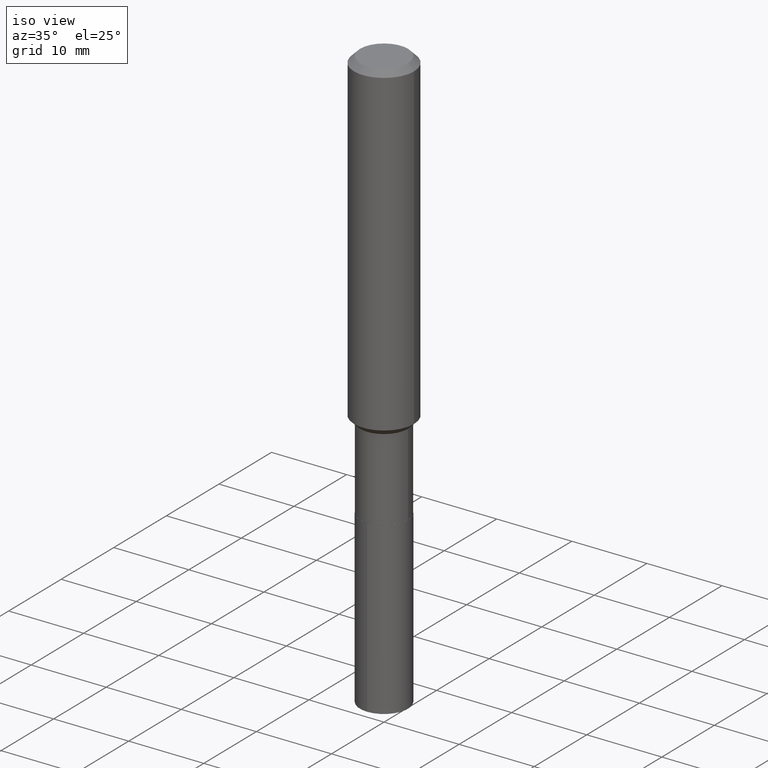
[diagram: clean part render]
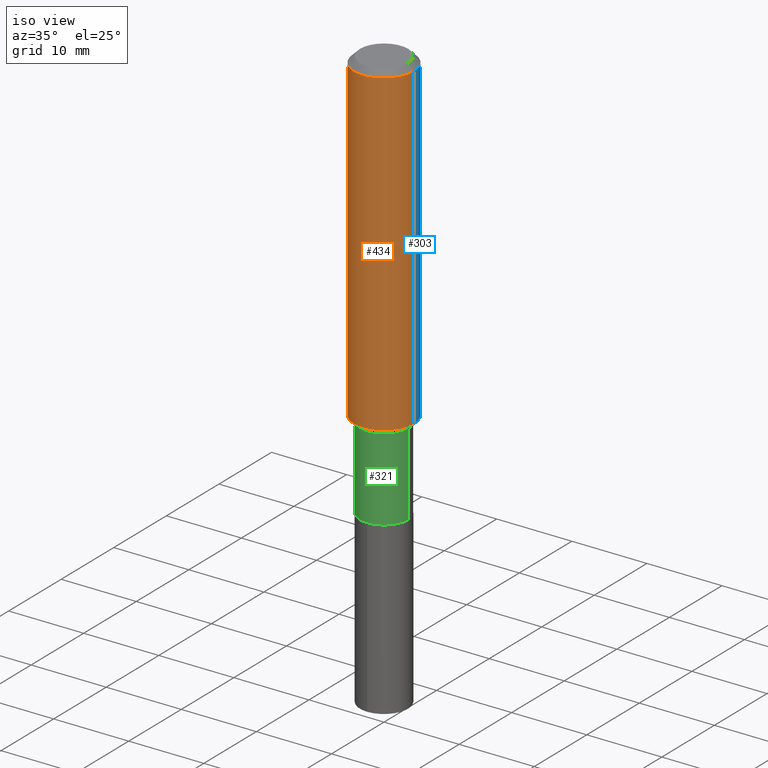
[diagram: same view with three faces highlighted in distinct colors, each labeled with its STEP entity id]
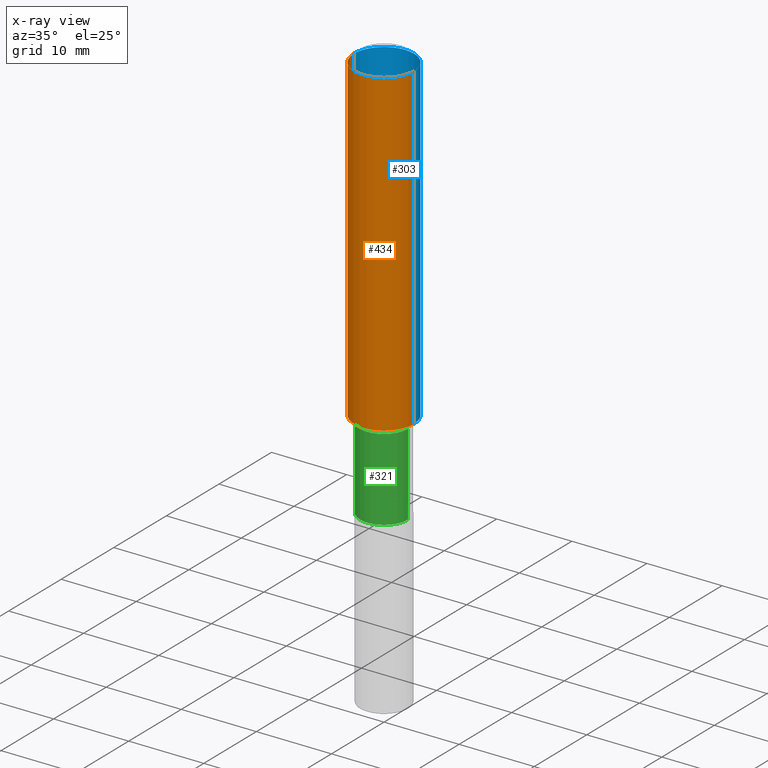
[diagram: x-ray of the same camera — body ghosted, the three highlighted faces saturated]
A machine part, iso view with three faces highlighted in distinct colors.
The next image is the same camera in x-ray (body ghosted, the three faces saturated) — at least one of them is partly hidden behind the body in this view.
Their STEP definitions:

[orange] entity #434 — the highlighted cylindrical surface (partial cylindrical patch) has radius 4.0005 mm, axis along (-0, 0, 1).
#22 = ORIENTED_EDGE ( 'NONE', *, *, #143, .F. ) ;
#27 = EDGE_CURVE ( 'NONE', #396, #343, #299, .T. ) ;
#45 = CARTESIAN_POINT ( 'NONE',  ( 7.703226739483228723E-31, -1.099816621735597661E-16, -0.03150000000000019451 ) ) ;
#47 = AXIS2_PLACEMENT_3D ( 'NONE', #287, #168, #164 ) ;
#94 = LINE ( 'NONE', #441, #387 ) ;
#132 = ORIENTED_EDGE ( 'NONE', *, *, #180, .T. ) ;
#143 = EDGE_CURVE ( 'NONE', #403, #345, #425, .T. ) ;
#144 = CARTESIAN_POINT ( 'NONE',  ( -0.1575000000000001954, -4.824443874290526161E-15, -1.702299999999999702 ) ) ;
#164 = DIRECTION ( 'NONE',  ( 1.000000000000000000, -6.982962677686267499E-15, 4.876176775795936353E-29 ) ) ;
#168 = DIRECTION ( 'NONE',  ( -2.445468806185136597E-29, 3.491481338843145583E-15, 1.000000000000000000 ) ) ;
#172 = CARTESIAN_POINT ( 'NONE',  ( 4.162921548768957196E-29, -5.943548683112686131E-15, -1.702299999999999702 ) ) ;
#180 = EDGE_CURVE ( 'NONE', #343, #345, #395, .T. ) ;
#204 = CARTESIAN_POINT ( 'NONE',  ( 0.1575000000000000844, -1.099816621735587677E-15, 7.679978421878603638E-30 ) ) ;
#215 = EDGE_LOOP ( 'NONE', ( #416, #418, #132, #22 ) ) ;
#216 = VECTOR ( 'NONE', #424, 39.37007874015748143 ) ;
#261 = CARTESIAN_POINT ( 'NONE',  ( -0.1575000000000000011, -1.907660363820963613E-15, -0.03150000000000019451 ) ) ;
#263 = EDGE_CURVE ( 'NONE', #396, #403, #94, .T. ) ;
#287 = CARTESIAN_POINT ( 'NONE',  ( 0.000000000000000000, 0.000000000000000000, 0.000000000000000000 ) ) ;
#289 = DIRECTION ( 'NONE',  ( -2.445468806185136877E-29, 3.491481338843145188E-15, 1.000000000000000000 ) ) ;
#292 = FACE_OUTER_BOUND ( 'NONE', #215, .T. ) ;
#293 = CARTESIAN_POINT ( 'NONE',  ( 0.1575000000000000011, -1.209798283909146741E-15, -0.03150000000000019451 ) ) ;
#299 = CIRCLE ( 'NONE', #488, 0.1575000000000001954 ) ;
#314 = DIRECTION ( 'NONE',  ( 1.000000000000000000, -6.982962677686265922E-15, 0.000000000000000000 ) ) ;
#319 = DIRECTION ( 'NONE',  ( -2.445468806185136597E-29, 3.491481338843145583E-15, 1.000000000000000000 ) ) ;
#325 = DIRECTION ( 'NONE',  ( 1.000000000000000000, -6.982962677686265922E-15, 0.000000000000000000 ) ) ;
#329 = CYLINDRICAL_SURFACE ( 'NONE', #47, 0.1575000000000000844 ) ;
#343 = VERTEX_POINT ( 'NONE', #479 ) ;
#345 = VERTEX_POINT ( 'NONE', #293 ) ;
#387 = VECTOR ( 'NONE', #289, 39.37007874015748143 ) ;
#395 = LINE ( 'NONE', #204, #216 ) ;
#396 = VERTEX_POINT ( 'NONE', #144 ) ;
#403 = VERTEX_POINT ( 'NONE', #261 ) ;
#416 = ORIENTED_EDGE ( 'NONE', *, *, #263, .F. ) ;
#418 = ORIENTED_EDGE ( 'NONE', *, *, #27, .T. ) ;
#424 = DIRECTION ( 'NONE',  ( -2.445468806185136877E-29, 3.491481338843145188E-15, 1.000000000000000000 ) ) ;
#425 = CIRCLE ( 'NONE', #447, 0.1575000000000000011 ) ;
#431 = DIRECTION ( 'NONE',  ( -2.445468806185136597E-29, 3.491481338843145583E-15, 1.000000000000000000 ) ) ;
#434 = ADVANCED_FACE ( 'NONE', ( #292 ), #329, .T. ) ;
#441 = CARTESIAN_POINT ( 'NONE',  ( -0.1575000000000000844, 1.119104808822158392E-15, -7.747322767151481189E-30 ) ) ;
#447 = AXIS2_PLACEMENT_3D ( 'NONE', #45, #431, #314 ) ;
#479 = CARTESIAN_POINT ( 'NONE',  ( 0.1575000000000001954, -7.043365304848274400E-15, -1.702299999999999702 ) ) ;
#488 = AXIS2_PLACEMENT_3D ( 'NONE', #172, #319, #325 ) ;

[blue] entity #303 — the highlighted cylindrical surface (partial cylindrical patch) has radius 4.0005 mm, axis along (-0, 0, 1).
#33 = DIRECTION ( 'NONE',  ( -2.445468806185136597E-29, 3.491481338843145583E-15, 1.000000000000000000 ) ) ;
#38 = EDGE_CURVE ( 'NONE', #345, #403, #269, .T. ) ;
#58 = EDGE_LOOP ( 'NONE', ( #174, #251, #211, #158 ) ) ;
#60 = CYLINDRICAL_SURFACE ( 'NONE', #126, 0.1575000000000000844 ) ;
#94 = LINE ( 'NONE', #441, #387 ) ;
#98 = AXIS2_PLACEMENT_3D ( 'NONE', #362, #227, #414 ) ;
#111 = DIRECTION ( 'NONE',  ( 1.000000000000000000, -6.982962677686267499E-15, 4.876176775795936353E-29 ) ) ;
#126 = AXIS2_PLACEMENT_3D ( 'NONE', #473, #285, #111 ) ;
#144 = CARTESIAN_POINT ( 'NONE',  ( -0.1575000000000001954, -4.824443874290526161E-15, -1.702299999999999702 ) ) ;
#156 = AXIS2_PLACEMENT_3D ( 'NONE', #372, #33, #485 ) ;
#158 = ORIENTED_EDGE ( 'NONE', *, *, #180, .F. ) ;
#167 = CIRCLE ( 'NONE', #156, 0.1575000000000001954 ) ;
#174 = ORIENTED_EDGE ( 'NONE', *, *, #388, .T. ) ;
#180 = EDGE_CURVE ( 'NONE', #343, #345, #395, .T. ) ;
#204 = CARTESIAN_POINT ( 'NONE',  ( 0.1575000000000000844, -1.099816621735587677E-15, 7.679978421878603638E-30 ) ) ;
#211 = ORIENTED_EDGE ( 'NONE', *, *, #38, .F. ) ;
#216 = VECTOR ( 'NONE', #424, 39.37007874015748143 ) ;
#227 = DIRECTION ( 'NONE',  ( -2.445468806185136597E-29, 3.491481338843145583E-15, 1.000000000000000000 ) ) ;
#251 = ORIENTED_EDGE ( 'NONE', *, *, #263, .T. ) ;
#261 = CARTESIAN_POINT ( 'NONE',  ( -0.1575000000000000011, -1.907660363820963613E-15, -0.03150000000000019451 ) ) ;
#263 = EDGE_CURVE ( 'NONE', #396, #403, #94, .T. ) ;
#269 = CIRCLE ( 'NONE', #98, 0.1575000000000000011 ) ;
#285 = DIRECTION ( 'NONE',  ( -2.445468806185136597E-29, 3.491481338843145583E-15, 1.000000000000000000 ) ) ;
#289 = DIRECTION ( 'NONE',  ( -2.445468806185136877E-29, 3.491481338843145188E-15, 1.000000000000000000 ) ) ;
#293 = CARTESIAN_POINT ( 'NONE',  ( 0.1575000000000000011, -1.209798283909146741E-15, -0.03150000000000019451 ) ) ;
#303 = ADVANCED_FACE ( 'NONE', ( #437 ), #60, .T. ) ;
#343 = VERTEX_POINT ( 'NONE', #479 ) ;
#345 = VERTEX_POINT ( 'NONE', #293 ) ;
#362 = CARTESIAN_POINT ( 'NONE',  ( 7.703226739483228723E-31, -1.099816621735597661E-16, -0.03150000000000019451 ) ) ;
#372 = CARTESIAN_POINT ( 'NONE',  ( 4.162921548768957196E-29, -5.943548683112686131E-15, -1.702299999999999702 ) ) ;
#387 = VECTOR ( 'NONE', #289, 39.37007874015748143 ) ;
#388 = EDGE_CURVE ( 'NONE', #343, #396, #167, .T. ) ;
#395 = LINE ( 'NONE', #204, #216 ) ;
#396 = VERTEX_POINT ( 'NONE', #144 ) ;
#403 = VERTEX_POINT ( 'NONE', #261 ) ;
#414 = DIRECTION ( 'NONE',  ( 1.000000000000000000, -6.982962677686265922E-15, 0.000000000000000000 ) ) ;
#424 = DIRECTION ( 'NONE',  ( -2.445468806185136877E-29, 3.491481338843145188E-15, 1.000000000000000000 ) ) ;
#437 = FACE_OUTER_BOUND ( 'NONE', #58, .T. ) ;
#441 = CARTESIAN_POINT ( 'NONE',  ( -0.1575000000000000844, 1.119104808822158392E-15, -7.747322767151481189E-30 ) ) ;
#473 = CARTESIAN_POINT ( 'NONE',  ( 0.000000000000000000, 0.000000000000000000, 0.000000000000000000 ) ) ;
#479 = CARTESIAN_POINT ( 'NONE',  ( 0.1575000000000001954, -7.043365304848274400E-15, -1.702299999999999702 ) ) ;
#485 = DIRECTION ( 'NONE',  ( 1.000000000000000000, -6.982962677686265922E-15, 0.000000000000000000 ) ) ;

[green] entity #321 — the highlighted cylindrical surface (edge-blend (fillet) strip) has radius 3.2004 mm, axis along (-0, 0, 1).
#14 = DIRECTION ( 'NONE',  ( -2.445468806185136597E-29, 3.491481338843145583E-15, 1.000000000000000000 ) ) ;
#31 = CARTESIAN_POINT ( 'NONE',  ( -0.1260000000000000009, -5.910660726749217363E-15, -2.164800000000000058 ) ) ;
#52 = LINE ( 'NONE', #462, #305 ) ;
#80 = CARTESIAN_POINT ( 'NONE',  ( 4.239953816163789675E-29, -6.053530345286245589E-15, -1.733800000000000008 ) ) ;
#100 = CYLINDRICAL_SURFACE ( 'NONE', #406, 0.1259999999999999731 ) ;
#119 = DIRECTION ( 'NONE',  ( -2.445468806185136597E-29, 3.491481338843145583E-15, 1.000000000000000000 ) ) ;
#141 = VERTEX_POINT ( 'NONE', #194 ) ;
#147 = EDGE_CURVE ( 'NONE', #381, #141, #52, .T. ) ;
#171 = VERTEX_POINT ( 'NONE', #421 ) ;
#176 = FACE_OUTER_BOUND ( 'NONE', #472, .T. ) ;
#194 = CARTESIAN_POINT ( 'NONE',  ( -0.1259999999999999454, -5.910660726749217363E-15, -1.733800000000000008 ) ) ;
#195 = VERTEX_POINT ( 'NONE', #308 ) ;
#197 = VECTOR ( 'NONE', #354, 39.37007874015748143 ) ;
#201 = LINE ( 'NONE', #392, #197 ) ;
#213 = EDGE_CURVE ( 'NONE', #171, #195, #201, .T. ) ;
#228 = EDGE_CURVE ( 'NONE', #381, #171, #365, .T. ) ;
#237 = EDGE_CURVE ( 'NONE', #141, #195, #367, .T. ) ;
#242 = ORIENTED_EDGE ( 'NONE', *, *, #213, .T. ) ;
#243 = DIRECTION ( 'NONE',  ( -2.445468806185136877E-29, 3.491481338843145188E-15, 1.000000000000000000 ) ) ;
#259 = CARTESIAN_POINT ( 'NONE',  ( 0.000000000000000000, 0.000000000000000000, 0.000000000000000000 ) ) ;
#274 = ORIENTED_EDGE ( 'NONE', *, *, #147, .F. ) ;
#305 = VECTOR ( 'NONE', #243, 39.37007874015748143 ) ;
#308 = CARTESIAN_POINT ( 'NONE',  ( 0.1259999999999999454, -6.933383642674714153E-15, -1.733800000000000008 ) ) ;
#321 = ADVANCED_FACE ( 'NONE', ( #176 ), #100, .T. ) ;
#322 = AXIS2_PLACEMENT_3D ( 'NONE', #80, #119, #344 ) ;
#333 = AXIS2_PLACEMENT_3D ( 'NONE', #465, #14, #429 ) ;
#344 = DIRECTION ( 'NONE',  ( 1.000000000000000000, -6.982962677686265922E-15, 0.000000000000000000 ) ) ;
#351 = ORIENTED_EDGE ( 'NONE', *, *, #237, .F. ) ;
#354 = DIRECTION ( 'NONE',  ( -2.445468806185136877E-29, 3.491481338843145188E-15, 1.000000000000000000 ) ) ;
#365 = CIRCLE ( 'NONE', #333, 0.1260000000000000009 ) ;
#367 = CIRCLE ( 'NONE', #322, 0.1259999999999999454 ) ;
#369 = DIRECTION ( 'NONE',  ( 1.000000000000000000, -6.982962677686265922E-15, 4.876176775795935793E-29 ) ) ;
#381 = VERTEX_POINT ( 'NONE', #31 ) ;
#384 = ORIENTED_EDGE ( 'NONE', *, *, #228, .T. ) ;
#392 = CARTESIAN_POINT ( 'NONE',  ( 0.1259999999999999731, -8.798532973884693531E-16, 6.143982737502877445E-30 ) ) ;
#405 = DIRECTION ( 'NONE',  ( -2.445468806185136597E-29, 3.491481338843145583E-15, 1.000000000000000000 ) ) ;
#406 = AXIS2_PLACEMENT_3D ( 'NONE', #259, #405, #369 ) ;
#421 = CARTESIAN_POINT ( 'NONE',  ( 0.1260000000000000009, -8.438212099716110972E-15, -2.164800000000000058 ) ) ;
#429 = DIRECTION ( 'NONE',  ( 1.000000000000000000, -6.982962677686262766E-15, 0.000000000000000000 ) ) ;
#462 = CARTESIAN_POINT ( 'NONE',  ( -0.1259999999999999731, 8.952838470577260433E-16, -6.197858213721179906E-30 ) ) ;
#465 = CARTESIAN_POINT ( 'NONE',  ( 5.293950871629583880E-29, -7.558358802327641618E-15, -2.164800000000000058 ) ) ;
#472 = EDGE_LOOP ( 'NONE', ( #274, #384, #242, #351 ) ) ;